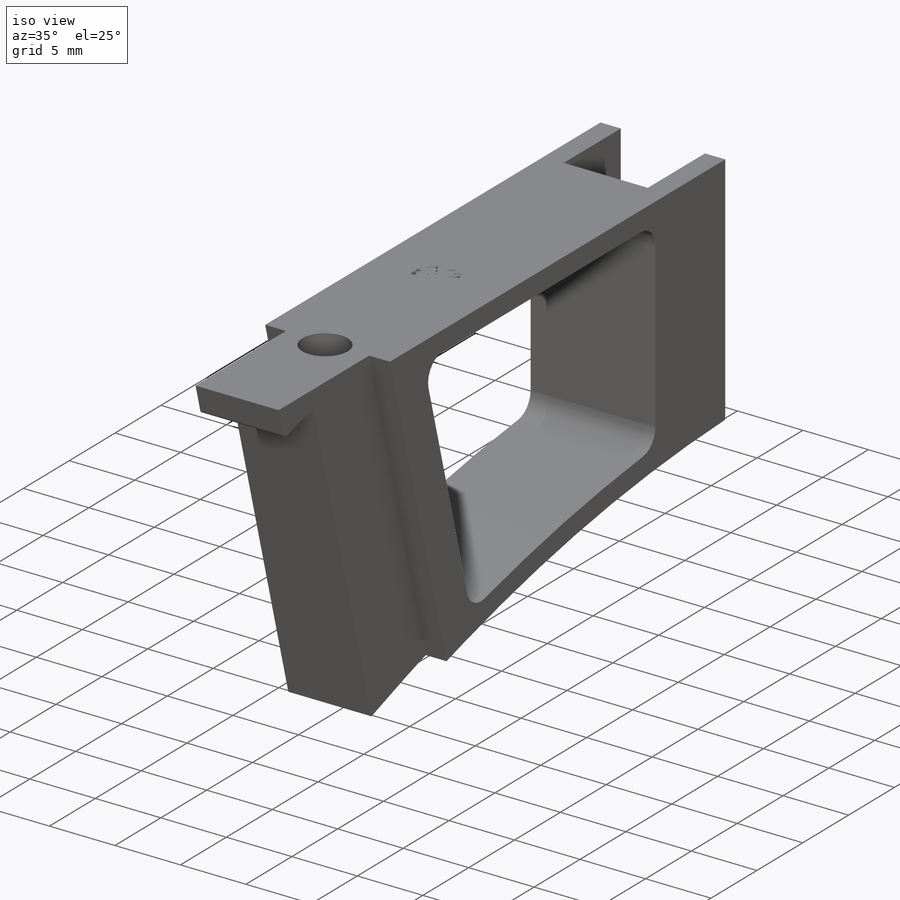
[diagram: iso view]
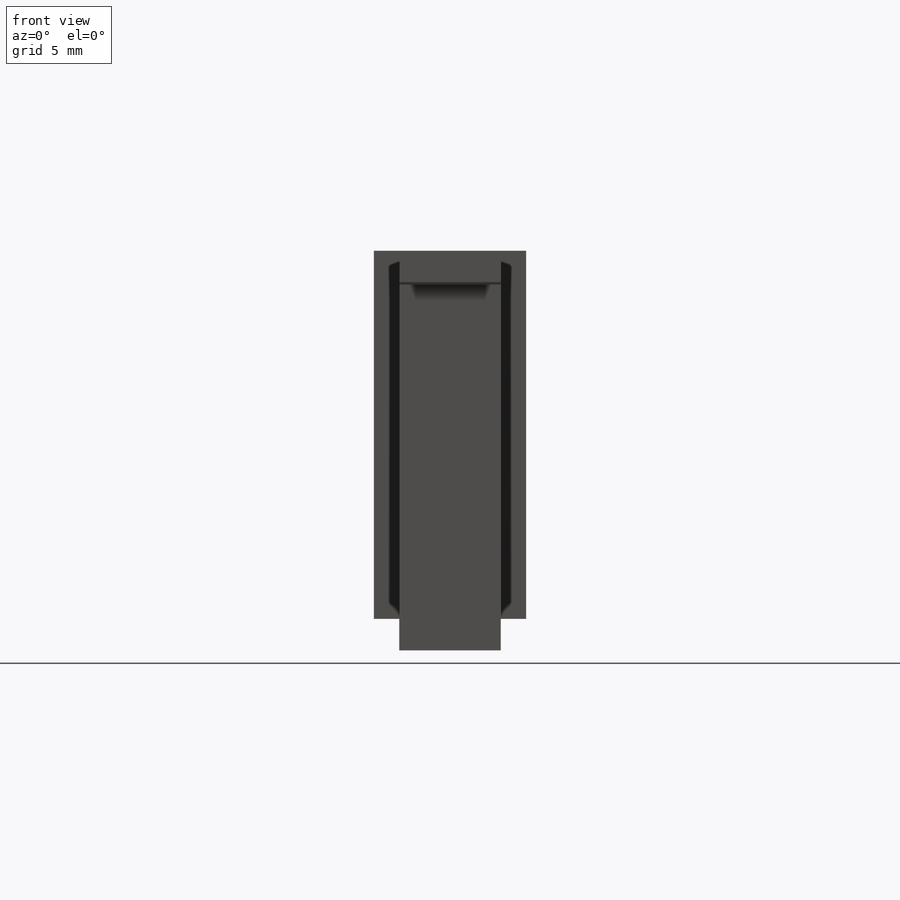
[diagram: front view]
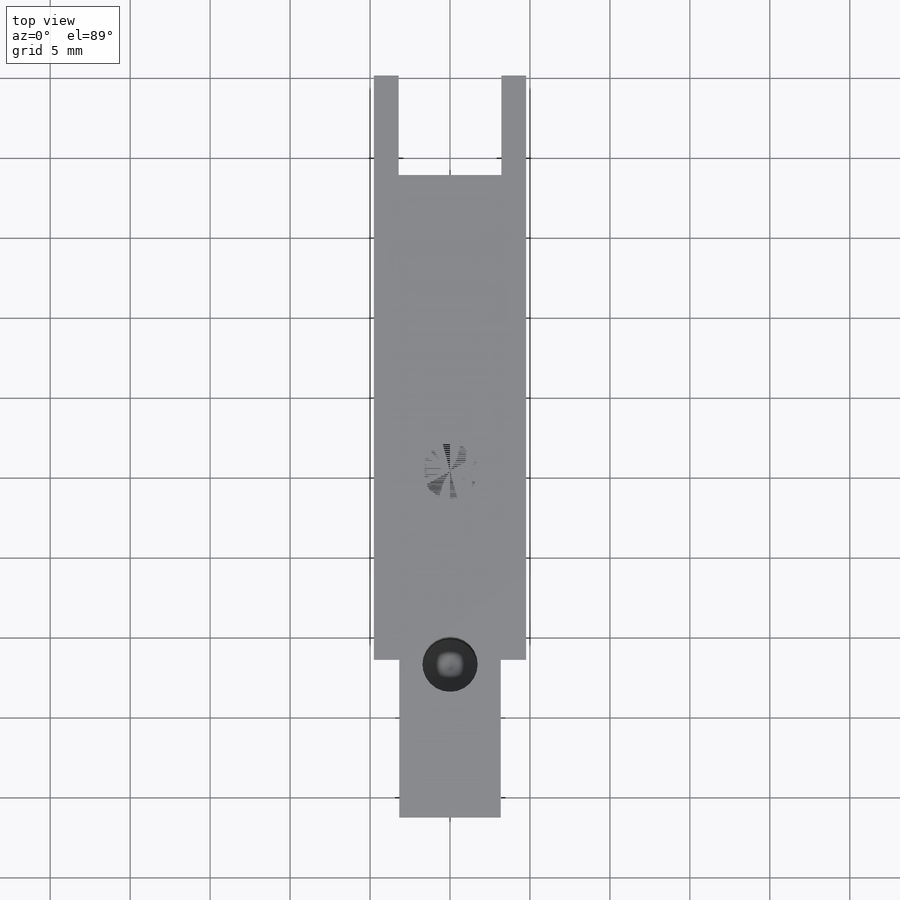
[diagram: top view]
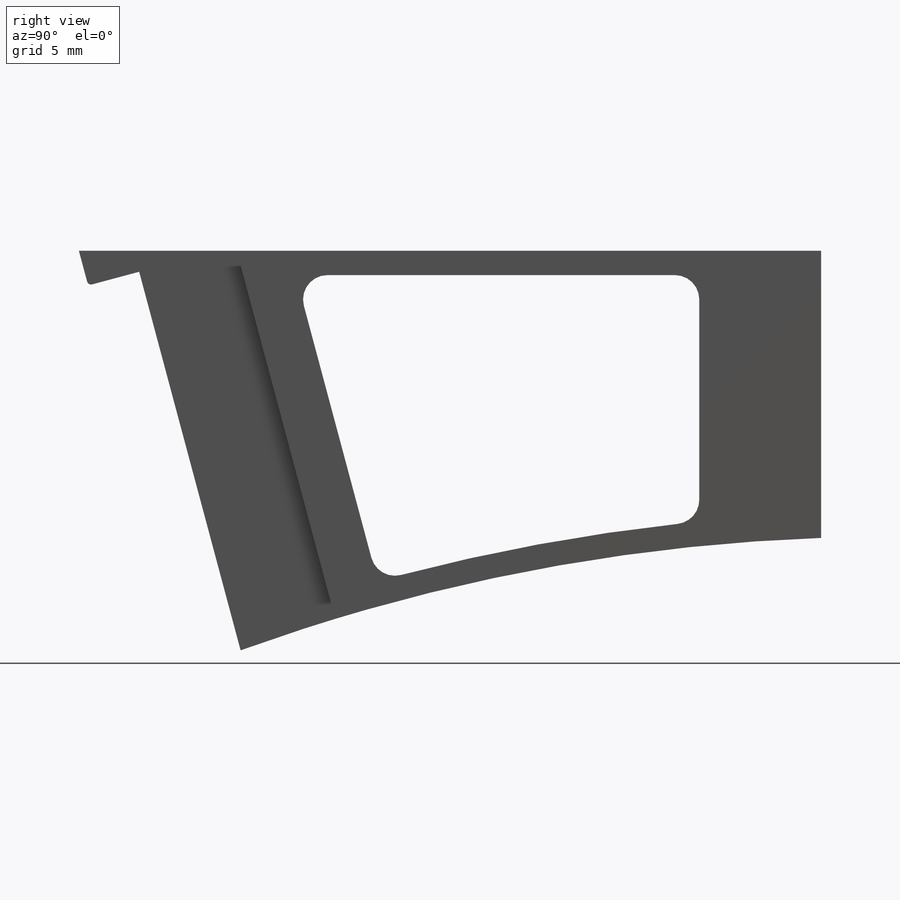
[diagram: right view]
SOLIDWORKS PART (.sldprt)
format: sldprt  version: not decoded by parser v0  size: 330,752 bytes
history: native  units: mm
features: sketch x10, cut_extrude x4, extrude x3, fillet x2, material x1, hole x1, thread x1, mirror x1 (+11 scaffold rows collapsed)
feature tree (34):
  scaffold x11  (default folders/planes/origin — collapsed)
  material  "Polyetheretherketone (PEEK)"
  sketch  "Sketch1"  dims[c1.D5=119.0mm c1.D1=~36.779708mm c1.D2=19.05mm c1.D3=~26.719784mm c1.D4=~26.883996mm c2.D4=~74.752051deg c3.D4=19.177mm c4.D4=15.0deg c4.D6=~140.636027mm c4.D3=~140.636027mm c4.D2=10.5437mm c5.D3=~18.35404mm]
  extrude  "Boss-Extrude1"  Depth=9.525mm
  hole  "#8-32 Tapped Hole1"  Diameter=3.4544mm Depth=8.89mm
  sketch  "Sketch3"  dims[D1=30.48mm]
  sketch  "Sketch2"  dims[hole-wizard template sketch: 47 standard entries collapsed; hole parameters kept: c15.Tap Drill Depth=8.89mm c15.D3=~14.816244mm c15.Drill Angle=118.0deg]
  thread  "Hole Thread1"  Diameter=6.985mm  [1 undecoded]
  sketch  "Sketch4"  dims[D1=6.35mm]
  extrude  "Boss-Extrude2"  [1 undecoded]
  sketch  "Sketch5"  dims[D1=6.4262mm D2=22.225mm]
  cut_extrude  "Cut-Extrude1"  Depth=6.223mm
  sketch  "Sketch6"  dims[c1.D1=6.35mm c1.D2=28.575mm c2.D1=~24.913657mm c3.D1=15.0deg c3.D2=~24.789428mm c4.D2=~0.247949deg c5.D2=6.35mm]
  cut_extrude  "Cut-Extrude2"  Depth=1.5875mm
  mirror  "Mirror1"
  sketch  "Sketch8"  dims[c1.D4=~120.584261mm c1.D1=1.524mm c1.D2=1.524mm c1.D3=~20.679047mm c2.D3=~1.727458deg c3.D3=1.524mm c3.D4=1.524mm c3.D2=7.62mm c4.D3=~21.255103mm c5.D3=~0.247949deg c6.D3=3.175mm]
  cut_extrude  "Cut-Extrude4"  [1 undecoded]
  fillet  "Fillet1"  Radius=1.524mm
  sketch  "Sketch9"  dims[D1=1.397mm D2=3.175mm D3=0.0mm]
  extrude  "Boss-Extrude3"  Depth=6.35mm
  fillet  "Fillet2"  Radius=0.254mm
  sketch  "Sketch12"
  sketch  "Sketch13"  dims[D1=0.127mm]
  cut_extrude  "Cut-Extrude5"  [1 undecoded]
decode coverage: 17 of 22 modeling features carry decoded parameters
note: ~ marks probable driven/reference dimensions
note: 4 parameter values undecoded
summary: no parameter record found for 3 features
note: suppression state not decoded; provenance and decode notes live in map.json
